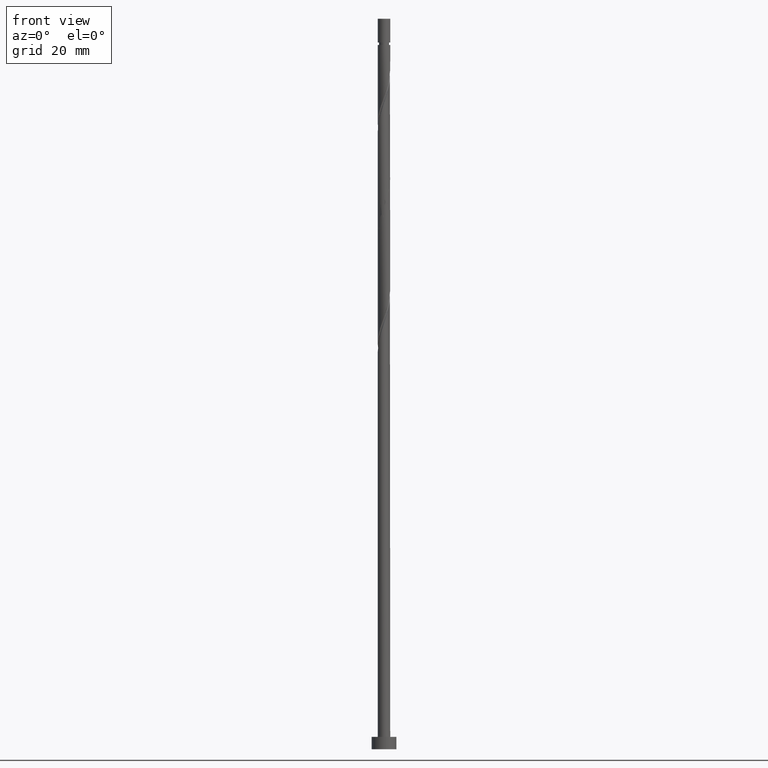
[diagram: clean part render]
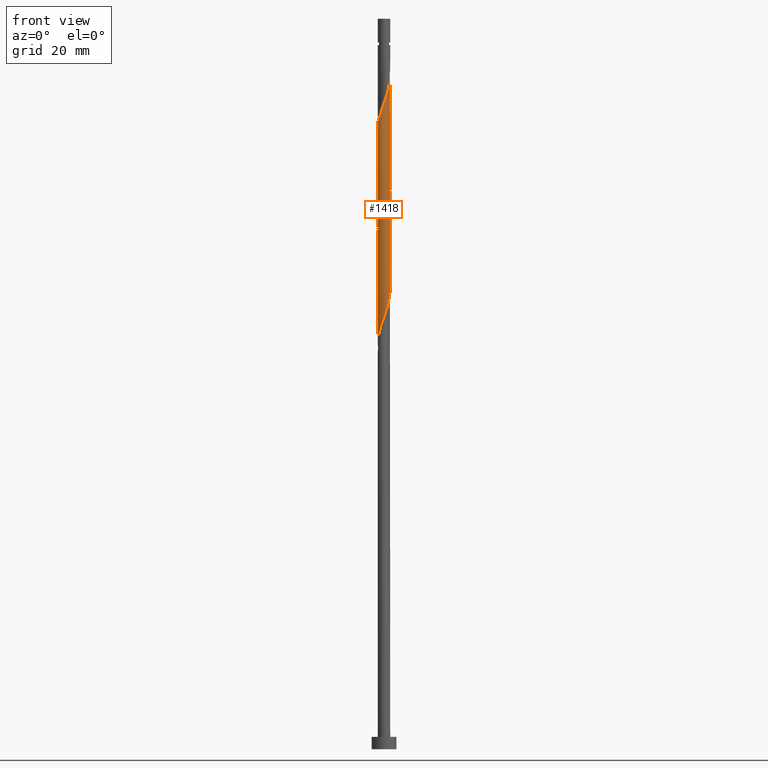
[diagram: same view with one face highlighted and labeled with its STEP entity id]
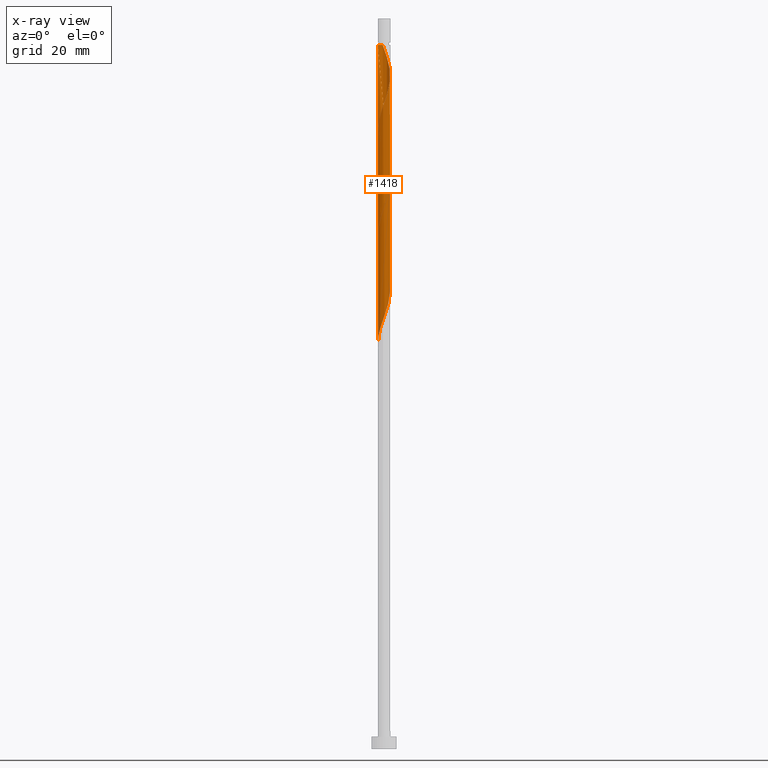
[diagram: x-ray of the same camera — body ghosted, the highlighted face saturated]
A machine part, front view. The second image highlights one B-rep face of the part: STEP entity #1418.
The next image is the same camera in x-ray: the body ghosted, the highlighted face saturated — about 0% of this face is hidden behind the body in this view.
In plain terms, the highlighted cylindrical surface (bore or boss wall) has radius 1.5 mm, axis along (-0, -0, -1).
Its self-contained STEP definition (entity closure, byte-faithful):
#3 = CARTESIAN_POINT ( 'NONE',  ( 1.461158848907850194, 0.3391383467823793074, 139.1065839903388905 ) ) ;
#7 = FACE_OUTER_BOUND ( 'NONE', #682, .T. ) ;
#15 = CARTESIAN_POINT ( 'NONE',  ( 1.412398115979204949, 0.5492212733340086084, 113.0459779297328708 ) ) ;
#22 = CARTESIAN_POINT ( 'NONE',  ( 1.339997810401561518, -0.7077558288161661659, 136.0762809600358594 ) ) ;
#30 = CARTESIAN_POINT ( 'NONE',  ( -1.086320624467305818, 1.056607754070165939, 121.5308264145813695 ) ) ;
#32 = CARTESIAN_POINT ( 'NONE',  ( -1.213159217434435888, -0.8821817914431672181, 152.4399173236722902 ) ) ;
#37 = CARTESIAN_POINT ( 'NONE',  ( -1.497517962423704718, 0.08625515763335878106, 124.5611294448843722 ) ) ;
#43 = CARTESIAN_POINT ( 'NONE',  ( 1.485116343010913109, -0.3015657354974676796, 110.6217355054904345 ) ) ;
#46 = VECTOR ( 'NONE', #661, 1000.000000000000000 ) ;
#50 = CARTESIAN_POINT ( 'NONE',  ( -1.461158848907850194, -0.3391383467823798625, 99.10658399033891897 ) ) ;
#67 = CARTESIAN_POINT ( 'NONE',  ( 1.045853010636307090, -1.075263446855226013, 159.7126445963995707 ) ) ;
#82 = EDGE_CURVE ( 'NONE', #306, #1260, #578, .T. ) ;
#87 = VERTEX_POINT ( 'NONE', #550 ) ;
#94 = ORIENTED_EDGE ( 'NONE', *, *, #1450, .F. ) ;
#139 = CARTESIAN_POINT ( 'NONE',  ( -0.8912534666523064253, -1.225634408494018723, 102.1368870206419501 ) ) ;
#146 = CARTESIAN_POINT ( 'NONE',  ( 1.497517962423704718, -0.08625515763335897534, 137.8944627782176724 ) ) ;
#149 = CARTESIAN_POINT ( 'NONE',  ( 1.485116343010915552, 0.3015657354974674020, 163.9550688388238200 ) ) ;
#150 = CARTESIAN_POINT ( 'NONE',  ( -1.485116343010915552, -0.3015657354974674575, 150.6217355054904772 ) ) ;
#158 = CARTESIAN_POINT ( 'NONE',  ( -0.3426257832300782513, 1.476184276359225889, 119.1065839903389048 ) ) ;
#164 = CARTESIAN_POINT ( 'NONE',  ( -0.8912534666523064253, -1.225634408494018723, 128.8035536873086357 ) ) ;
#171 = CARTESIAN_POINT ( 'NONE',  ( -1.339997810401563960, -0.7077558288161672762, 151.8338567176116953 ) ) ;
#181 = CARTESIAN_POINT ( 'NONE',  ( -0.2984962311320401573, 1.470000000000530882, 170.6217355054905056 ) ) ;
#200 = CARTESIAN_POINT ( 'NONE',  ( 1.412398115979206725, -0.5492212733340107178, 161.5308264145813837 ) ) ;
#235 = CARTESIAN_POINT ( 'NONE',  ( 0.08714213895937637788, 1.512917278876086069, 144.5611294448843864 ) ) ;
#246 = CARTESIAN_POINT ( 'NONE',  ( 1.500000000000000000, -0.04316328978573361758, 138.0157586467397550 ) ) ;
#253 = CARTESIAN_POINT ( 'NONE',  ( -0.7005518949784523830, -1.326358564808965967, 129.4096142933692306 ) ) ;
#256 = CARTESIAN_POINT ( 'NONE',  ( -1.497517962423704718, 0.08625515763335878106, 151.2277961115510720 ) ) ;
#261 = CARTESIAN_POINT ( 'NONE',  ( 0.5436309926831510708, -1.398021939668449010, 106.3793112630661994 ) ) ;
#268 = CARTESIAN_POINT ( 'NONE',  ( 1.412557076706236758, -0.5046607821568168672, 136.6823415660965111 ) ) ;
#270 = CARTESIAN_POINT ( 'NONE',  ( 0.7446362021362258332, 1.319859602977673685, 167.5914324751874176 ) ) ;
#271 = CIRCLE ( 'NONE', #1345, 1.499999999999991784 ) ;
#276 = CARTESIAN_POINT ( 'NONE',  ( 0.08714213895937637788, 1.512917278876086069, 117.8944627782177150 ) ) ;
#282 = CARTESIAN_POINT ( 'NONE',  ( -0.2984962311319873107, -1.469999999999999751, 103.9550688388237916 ) ) ;
#294 = ORIENTED_EDGE ( 'NONE', *, *, #376, .F. ) ;
#302 = DIRECTION ( 'NONE',  ( -1.000000000000000000, 0.000000000000000000, 0.000000000000000000 ) ) ;
#306 = VERTEX_POINT ( 'NONE', #645 ) ;
#308 = CARTESIAN_POINT ( 'NONE',  ( 0.8912534666523079796, -1.225634408494020722, 159.1065839903389190 ) ) ;
#337 = AXIS2_PLACEMENT_3D ( 'NONE', #831, #1431, #358 ) ;
#343 = CARTESIAN_POINT ( 'NONE',  ( 0.8912534666523064253, 1.225634408494018501, 142.1368870206419217 ) ) ;
#354 = ORIENTED_EDGE ( 'NONE', *, *, #1078, .F. ) ;
#358 = DIRECTION ( 'NONE',  ( -1.000000000000000000, 0.000000000000000000, 0.000000000000000000 ) ) ;
#366 = CARTESIAN_POINT ( 'NONE',  ( 0.9154784133017644931, -1.188233678523918702, 134.2580991418541032 ) ) ;
#369 = CARTESIAN_POINT ( 'NONE',  ( 0.7005518949784524940, 1.326358564808965967, 142.7429476267025734 ) ) ;
#375 = CARTESIAN_POINT ( 'NONE',  ( -1.200452554620304202, -0.9248924852164287502, 100.9247658085207320 ) ) ;
#376 = EDGE_CURVE ( 'NONE', #87, #1198, #1522, .T. ) ;
#378 = CARTESIAN_POINT ( 'NONE',  ( 0.08714213895937622523, -1.512917278876088734, 156.6823415660964827 ) ) ;
#384 = CARTESIAN_POINT ( 'NONE',  ( 1.086320624467306262, -1.056607754070165717, 108.1974930812480551 ) ) ;
#386 = CARTESIAN_POINT ( 'NONE',  ( 0.9154784133017664915, 1.188233678523920478, 166.9853718691268512 ) ) ;
#387 = CARTESIAN_POINT ( 'NONE',  ( -0.3426257832300790840, -1.476184276359228109, 155.4702203539753214 ) ) ;
#391 = CARTESIAN_POINT ( 'NONE',  ( 1.306425335299754353, 0.7370568792752194565, 113.6520385357934515 ) ) ;
#397 = CARTESIAN_POINT ( 'NONE',  ( -0.2984962311319873107, -1.469999999999999751, 130.6217355054904488 ) ) ;
#415 = CARTESIAN_POINT ( 'NONE',  ( -1.500000000000000222, 0.000000000000000000, 177.0000000000000000 ) ) ;
#430 = CARTESIAN_POINT ( 'NONE',  ( 0.000000000000000000, 0.000000000000000000, 170.6217355054904488 ) ) ;
#434 = ORIENTED_EDGE ( 'NONE', *, *, #750, .F. ) ;
#448 = VERTEX_POINT ( 'NONE', #1264 ) ;
#477 = CARTESIAN_POINT ( 'NONE',  ( -1.499999999999999778, 0.04316328978573650416, 151.3490919800730978 ) ) ;
#483 = CARTESIAN_POINT ( 'NONE',  ( 0.1277418221353504857, -1.494550777617656312, 105.1671900509449813 ) ) ;
#487 = CARTESIAN_POINT ( 'NONE',  ( -1.213159217434433446, 0.8821817914431657748, 148.8035536873086357 ) ) ;
#493 = CARTESIAN_POINT ( 'NONE',  ( -1.306425335299754797, -0.7370568792752192344, 126.9853718691268085 ) ) ;
#500 = CARTESIAN_POINT ( 'NONE',  ( -0.5436309926831510708, 1.398021939668449010, 119.7126445963995280 ) ) ;
#502 = CARTESIAN_POINT ( 'NONE',  ( 1.086320624467308260, 1.056607754070166605, 166.3793112630662563 ) ) ;
#503 = CARTESIAN_POINT ( 'NONE',  ( -1.086320624467307816, -1.056607754070167271, 153.0459779297329135 ) ) ;
#508 = CARTESIAN_POINT ( 'NONE',  ( -0.1277418221353509020, 1.494550777617656312, 118.5005233842783099 ) ) ;
#513 = CARTESIAN_POINT ( 'NONE',  ( 1.213159217434433668, -0.8821817914431657748, 108.8035536873086215 ) ) ;
#517 = CARTESIAN_POINT ( 'NONE',  ( -1.497517962423707383, -0.08625515763335846187, 150.0156748994299107 ) ) ;
#550 = CARTESIAN_POINT ( 'NONE',  ( 1.500000000000000222, 1.836970198721030181E-16, 170.6217355054904772 ) ) ;
#561 = DIRECTION ( 'NONE',  ( -0.000000000000000000, -0.000000000000000000, -1.000000000000000000 ) ) ;
#577 = CARTESIAN_POINT ( 'NONE',  ( -1.500000000000000000, 2.767011830146801923E-16, 151.4711899847913514 ) ) ;
#578 =( BOUNDED_CURVE ( )  B_SPLINE_CURVE ( 2, ( #619, #984, #517, #150, #1232, #171, #32, #503, #999, #977, #1461, #387, #1454, #378, #1488, #1253, #1135, #308, #67, #1379, #788, #200, #1033, #884, #1217, #149, #618, #1328, #609, #502, #386, #270, #1357, #1108, #1199, #601, #181 ),
 .UNSPECIFIED., .F., .T. ) 
 B_SPLINE_CURVE_WITH_KNOTS ( ( 3, 2, 2, 2, 2, 2, 2, 2, 2, 2, 2, 2, 2, 2, 2, 2, 2, 2, 3 ),
 ( 0.5545252162417512176, 0.5568181818181818787, 0.5681818181818181213, 0.5795454545454545858, 0.5909090909090909394, 0.6022727272727274039, 0.6136363636363637575, 0.6250000000000001110, 0.6363636363636365756, 0.6477272727272729291, 0.6590909090909093937, 0.6704545454545456362, 0.6818181818181821008, 0.6931818181818184543, 0.7045454545454549189, 0.7159090909090911614, 0.7272727272727277370, 0.7386363636363640905, 0.7500000000000004441 ),
 .UNSPECIFIED. ) 
 CURVE ( )  GEOMETRIC_REPRESENTATION_ITEM ( )  RATIONAL_B_SPLINE_CURVE ( ( 0.9061101570135784433, 0.9072237824201606626, 0.9090909090909382595, 0.8998376744372403868, 0.9090909090909382595, 0.8998376744372403868, 0.9090909090909382595, 0.8998376744372403868, 0.9090909090909382595, 0.8998376744372403868, 0.9090909090909382595, 0.8998376744372403868, 0.9090909090909382595, 0.8998376744372403868, 0.9090909090909382595, 0.8998376744372403868, 0.9090909090909382595, 0.8998376744372403868, 0.9090909090909382595, 0.8998376744372403868, 0.9090909090909382595, 0.8998376744372403868, 0.9090909090909382595, 0.8998376744372403868, 0.9090909090909382595, 0.8998376744372403868, 0.9090909090909382595, 0.8998376744372403868, 0.9090909090909382595, 0.8998376744372403868, 0.9090909090909382595, 0.8998376744372403868, 0.9090909090909382595, 0.8998376744372403868, 0.9090909090909382595, 0.8998376744372400537, 0.9090909090909385926 ) ) 
 REPRESENTATION_ITEM ( '' )  );
#586 = CARTESIAN_POINT ( 'NONE',  ( 0.2984962311319874773, 1.469999999999999751, 143.9550688388237631 ) ) ;
#595 = CARTESIAN_POINT ( 'NONE',  ( -1.485116343010913109, 0.3015657354974674575, 150.6217355054904488 ) ) ;
#598 = CARTESIAN_POINT ( 'NONE',  ( -1.485116343010913109, 0.3015657354974674575, 123.9550688388237916 ) ) ;
#601 = CARTESIAN_POINT ( 'NONE',  ( -0.08714213895938449639, 1.512917278876089400, 170.0156748994298255 ) ) ;
#602 = VERTEX_POINT ( 'NONE', #1193 ) ;
#603 = CARTESIAN_POINT ( 'NONE',  ( -0.3426257832300782513, 1.476184276359225889, 145.7732506570056046 ) ) ;
#607 = CARTESIAN_POINT ( 'NONE',  ( 1.086320624467306262, -1.056607754070165717, 134.8641597479146981 ) ) ;
#609 = CARTESIAN_POINT ( 'NONE',  ( 1.213159217434435888, 0.8821817914431669960, 165.7732506570056046 ) ) ;
#616 = CARTESIAN_POINT ( 'NONE',  ( -1.045853010636305980, -1.075263446855223570, 128.1974930812480409 ) ) ;
#618 = CARTESIAN_POINT ( 'NONE',  ( 1.412557076706239645, 0.5046607821568172003, 164.5611294448843580 ) ) ;
#619 = CARTESIAN_POINT ( 'NONE',  ( -1.500000000000002442, 1.720034380902052995E-16, 149.7722810261895461 ) ) ;
#625 = CARTESIAN_POINT ( 'NONE',  ( -0.5098503233045978966, -1.427082721123913434, 130.0156748994297971 ) ) ;
#632 = CARTESIAN_POINT ( 'NONE',  ( 0.7446362021362245009, -1.319859602977671686, 133.6520385357934799 ) ) ;
#640 = LINE ( 'NONE', #764, #1219 ) ;
#645 = CARTESIAN_POINT ( 'NONE',  ( -1.500000000000002442, 1.720034380902052995E-16, 149.7722810261895461 ) ) ;
#655 = LINE ( 'NONE', #415, #46 ) ;
#661 = DIRECTION ( 'NONE',  ( -0.000000000000000000, -0.000000000000000000, -1.000000000000000000 ) ) ;
#682 = EDGE_LOOP ( 'NONE', ( #354, #878, #1500, #1266, #94, #294, #858, #434 ) ) ;
#712 = CARTESIAN_POINT ( 'NONE',  ( 1.045853010636305092, 1.075263446855223792, 141.5308264145813268 ) ) ;
#727 = CARTESIAN_POINT ( 'NONE',  ( 1.509919581836496993, 0.1290554202307497289, 111.8338567176116669 ) ) ;
#732 = CARTESIAN_POINT ( 'NONE',  ( 1.412398115979204949, 0.5492212733340086084, 139.7126445963995423 ) ) ;
#738 = CARTESIAN_POINT ( 'NONE',  ( -1.412398115979204283, -0.5492212733340094966, 99.71264459639952804 ) ) ;
#745 = CARTESIAN_POINT ( 'NONE',  ( 0.3426257832300785289, -1.476184276359225889, 132.4399173236722618 ) ) ;
#750 = EDGE_CURVE ( 'NONE', #602, #1198, #1444, .T. ) ;
#752 = CARTESIAN_POINT ( 'NONE',  ( -1.412557076706236980, 0.5046607821568167562, 123.3490082327631967 ) ) ;
#758 = CARTESIAN_POINT ( 'NONE',  ( -1.412398115979204283, -0.5492212733340094966, 126.3793112630661852 ) ) ;
#764 = CARTESIAN_POINT ( 'NONE',  ( -1.500000000000000222, 0.000000000000000000, 177.0000000000000000 ) ) ;
#772 = CARTESIAN_POINT ( 'NONE',  ( -1.499999999999999778, -0.1717933910776846540, 98.62381660442927966 ) ) ;
#782 =( BOUNDED_CURVE ( )  B_SPLINE_CURVE ( 2, ( #1314, #246, #146, #1236, #268, #22, #1473, #607, #366, #632, #997, #745, #1230, #1084, #397, #625, #253, #164, #616, #1106, #493, #758, #1100, #1222, #37, #598, #752, #1215, #851, #30, #1459, #1452, #500, #158, #508, #276, #1113, #882, #990, #1466, #868, #1092, #391, #15, #875, #727, #981, #43, #1348, #1325, #513, #384, #967, #861, #261, #1355, #483, #1341, #282, #1440, #1207, #139, #975, #375, #1336, #738, #50, #772, #889 ),
 .UNSPECIFIED., .F., .T. ) 
 B_SPLINE_CURVE_WITH_KNOTS ( ( 3, 2, 2, 2, 2, 2, 2, 2, 2, 2, 2, 2, 2, 2, 2, 2, 2, 2, 2, 2, 2, 2, 2, 2, 2, 2, 2, 2, 2, 2, 2, 2, 2, 2, 3 ),
 ( 0.5545252162417512176, 0.5568181818181817677, 0.5681818181818182323, 0.5795454545454545858, 0.5909090909090909394, 0.6022727272727272929, 0.6136363636363636465, 0.6250000000000000000, 0.6363636363636363535, 0.6477272727272727071, 0.6590909090909090606, 0.6704545454545454142, 0.6818181818181817677, 0.6931818181818182323, 0.7045454545454545858, 0.7159090909090909394, 0.7272727272727272929, 0.7386363636363636465, 0.7500000000000000000, 0.7613636363636363535, 0.7727272727272727071, 0.7840909090909090606, 0.7954545454545454142, 0.8068181818181817677, 0.8181818181818182323, 0.8295454545454545858, 0.8409090909090909394, 0.8522727272727272929, 0.8636363636363636465, 0.8750000000000000000, 0.8863636363636363535, 0.8977272727272727071, 0.9090909090909090606, 0.9204545454545454142, 0.9295252162417512176 ),
 .UNSPECIFIED. ) 
 CURVE ( )  GEOMETRIC_REPRESENTATION_ITEM ( )  RATIONAL_B_SPLINE_CURVE ( ( 0.9061101570135718930, 0.9072237824201540013, 0.9090909090909315982, 0.8998376744372337255, 0.9090909090909315982, 0.8998376744372337255, 0.9090909090909315982, 0.8998376744372337255, 0.9090909090909315982, 0.8998376744372337255, 0.9090909090909315982, 0.8998376744372337255, 0.9090909090909315982, 0.8998376744372337255, 0.9090909090909315982, 0.8998376744372337255, 0.9090909090909315982, 0.8998376744372337255, 0.9090909090909315982, 0.8998376744372337255, 0.9090909090909315982, 0.8998376744372337255, 0.9090909090909315982, 0.8998376744372337255, 0.9090909090909315982, 0.8998376744372337255, 0.9090909090909315982, 0.8998376744372337255, 0.9090909090909315982, 0.8998376744372337255, 0.9090909090909315982, 0.8998376744372337255, 0.9090909090909315982, 0.8998376744372337255, 0.9090909090909315982, 0.8998376744372337255, 0.9090909090909315982, 0.8998376744372337255, 0.9090909090909315982, 0.8998376744372337255, 0.9090909090909315982, 0.8998376744372337255, 0.9090909090909315982, 0.8998376744372337255, 0.9090909090909315982, 0.8998376744372337255, 0.9090909090909315982, 0.8998376744372337255, 0.9090909090909315982, 0.8998376744372337255, 0.9090909090909315982, 0.8998376744372337255, 0.9090909090909315982, 0.8998376744372337255, 0.9090909090909315982, 0.8998376744372337255, 0.9090909090909315982, 0.8998376744372337255, 0.9090909090909315982, 0.8998376744372337255, 0.9090909090909315982, 0.8998376744372337255, 0.9090909090909315982, 0.8998376744372337255, 0.9090909090909315982, 0.8998376744372337255, 0.9090909090909315982, 0.9017048011080113223, 0.9061101570135718930 ) ) 
 REPRESENTATION_ITEM ( '' )  );
#788 = CARTESIAN_POINT ( 'NONE',  ( 1.306425335299756130, -0.7370568792752210108, 160.9247658085207604 ) ) ;
#809 = CARTESIAN_POINT ( 'NONE',  ( 1.500000000000000000, 1.503160480701370775E-15, 138.1378566514579802 ) ) ;
#820 = CARTESIAN_POINT ( 'NONE',  ( 1.499999999999999778, 0.1717933910776840989, 138.6238166044292939 ) ) ;
#827 = CARTESIAN_POINT ( 'NONE',  ( 1.200452554620303758, 0.9248924852164289723, 140.9247658085207320 ) ) ;
#831 = CARTESIAN_POINT ( 'NONE',  ( 0.000000000000000000, 0.000000000000000000, 177.0000000000000000 ) ) ;
#835 = CARTESIAN_POINT ( 'NONE',  ( -1.500000000000000000, -1.809775305123043420E-15, 98.13785665145800863 ) ) ;
#846 = VERTEX_POINT ( 'NONE', #835 ) ;
#851 = CARTESIAN_POINT ( 'NONE',  ( -1.213159217434433446, 0.8821817914431657748, 122.1368870206419501 ) ) ;
#856 = CARTESIAN_POINT ( 'NONE',  ( 1.306425335299754353, 0.7370568792752194565, 140.3187052024601371 ) ) ;
#858 = ORIENTED_EDGE ( 'NONE', *, *, #376, .T. ) ;
#861 = CARTESIAN_POINT ( 'NONE',  ( 0.7446362021362245009, -1.319859602977671686, 106.9853718691268369 ) ) ;
#868 = CARTESIAN_POINT ( 'NONE',  ( 1.045853010636305092, 1.075263446855223792, 114.8641597479146839 ) ) ;
#875 = CARTESIAN_POINT ( 'NONE',  ( 1.461158848907850194, 0.3391383467823793074, 112.4399173236722476 ) ) ;
#878 = ORIENTED_EDGE ( 'NONE', *, *, #1047, .T. ) ;
#882 = CARTESIAN_POINT ( 'NONE',  ( 0.5098503233045981187, 1.427082721123913434, 116.6823415660964969 ) ) ;
#884 = CARTESIAN_POINT ( 'NONE',  ( 1.509919581836499436, -0.1290554202307508114, 162.7429476267026018 ) ) ;
#889 = CARTESIAN_POINT ( 'NONE',  ( -1.500000000000000000, -1.809775305123043420E-15, 98.13785665145799442 ) ) ;
#939 = CARTESIAN_POINT ( 'NONE',  ( -0.5436309926831510708, 1.398021939668449010, 146.3793112630662279 ) ) ;
#942 = CARTESIAN_POINT ( 'NONE',  ( -0.2984962311320401573, 1.470000000000530882, 170.6217355054904772 ) ) ;
#967 = CARTESIAN_POINT ( 'NONE',  ( 0.9154784133017644931, -1.188233678523918702, 107.5914324751873892 ) ) ;
#975 = CARTESIAN_POINT ( 'NONE',  ( -1.045853010636305980, -1.075263446855223570, 101.5308264145813268 ) ) ;
#977 = CARTESIAN_POINT ( 'NONE',  ( -0.7446362021362261663, -1.319859602977673463, 154.2580991418541032 ) ) ;
#981 = CARTESIAN_POINT ( 'NONE',  ( 1.497517962423704718, -0.08625515763335897534, 111.2277961115510436 ) ) ;
#984 = CARTESIAN_POINT ( 'NONE',  ( -1.500000000000002887, -0.04316328978573132080, 149.8943790309077713 ) ) ;
#990 = CARTESIAN_POINT ( 'NONE',  ( 0.7005518949784524940, 1.326358564808965967, 116.0762809600359304 ) ) ;
#997 = CARTESIAN_POINT ( 'NONE',  ( 0.5436309926831510708, -1.398021939668449010, 133.0459779297328566 ) ) ;
#999 = CARTESIAN_POINT ( 'NONE',  ( -0.9154784133017667136, -1.188233678523920256, 153.6520385357935083 ) ) ;
#1033 = CARTESIAN_POINT ( 'NONE',  ( 1.461158848907853081, -0.3391383467823806952, 162.1368870206419786 ) ) ;
#1047 = EDGE_CURVE ( 'NONE', #448, #1260, #271, .T. ) ;
#1072 = CARTESIAN_POINT ( 'NONE',  ( -1.339997810401561518, 0.7077558288161661659, 149.4096142933692306 ) ) ;
#1078 = EDGE_CURVE ( 'NONE', #448, #602, #655, .T. ) ;
#1080 = CARTESIAN_POINT ( 'NONE',  ( 1.500000000000000000, 1.503160480701370775E-15, 138.1378566514579802 ) ) ;
#1084 = CARTESIAN_POINT ( 'NONE',  ( -0.08714213895937675258, -1.512917278876086069, 131.2277961115510152 ) ) ;
#1092 = CARTESIAN_POINT ( 'NONE',  ( 1.200452554620303758, 0.9248924852164289723, 114.2580991418540748 ) ) ;
#1100 = CARTESIAN_POINT ( 'NONE',  ( -1.461158848907850194, -0.3391383467823798625, 125.7732506570056188 ) ) ;
#1106 = CARTESIAN_POINT ( 'NONE',  ( -1.200452554620304202, -0.9248924852164287502, 127.5914324751874176 ) ) ;
#1108 = CARTESIAN_POINT ( 'NONE',  ( 0.3426257832300792505, 1.476184276359228109, 168.8035536873086073 ) ) ;
#1113 = CARTESIAN_POINT ( 'NONE',  ( 0.2984962311319874773, 1.469999999999999751, 117.2884021721570917 ) ) ;
#1135 = CARTESIAN_POINT ( 'NONE',  ( 0.7005518949784530491, -1.326358564808969298, 158.5005233842783525 ) ) ;
#1145 = DIRECTION ( 'NONE',  ( -0.000000000000000000, -0.000000000000000000, -1.000000000000000000 ) ) ;
#1170 = CARTESIAN_POINT ( 'NONE',  ( 1.500000000000000222, 1.836970198721030181E-16, 177.0000000000000000 ) ) ;
#1184 = CARTESIAN_POINT ( 'NONE',  ( -0.7446362021362245009, 1.319859602977671686, 146.9853718691267943 ) ) ;
#1193 = CARTESIAN_POINT ( 'NONE',  ( -1.500000000000000000, 2.767011830146801923E-16, 151.4711899847913514 ) ) ;
#1198 = VERTEX_POINT ( 'NONE', #809 ) ;
#1199 = CARTESIAN_POINT ( 'NONE',  ( 0.1277418221353515959, 1.494550777617658976, 169.4096142933692590 ) ) ;
#1207 = CARTESIAN_POINT ( 'NONE',  ( -0.7005518949784523830, -1.326358564808965967, 102.7429476267025876 ) ) ;
#1215 = CARTESIAN_POINT ( 'NONE',  ( -1.339997810401561518, 0.7077558288161661659, 122.7429476267025450 ) ) ;
#1217 = CARTESIAN_POINT ( 'NONE',  ( 1.497517962423707605, 0.08625515763335830921, 163.3490082327632820 ) ) ;
#1219 = VECTOR ( 'NONE', #1244, 1000.000000000000000 ) ;
#1222 = CARTESIAN_POINT ( 'NONE',  ( -1.509919581836496993, -0.1290554202307502840, 125.1671900509450097 ) ) ;
#1230 = CARTESIAN_POINT ( 'NONE',  ( 0.1277418221353504857, -1.494550777617656312, 131.8338567176116385 ) ) ;
#1232 = CARTESIAN_POINT ( 'NONE',  ( -1.412557076706239645, -0.5046607821568174224, 151.2277961115511005 ) ) ;
#1236 = CARTESIAN_POINT ( 'NONE',  ( 1.485116343010913109, -0.3015657354974676796, 137.2884021721571060 ) ) ;
#1244 = DIRECTION ( 'NONE',  ( -0.000000000000000000, -0.000000000000000000, -1.000000000000000000 ) ) ;
#1253 = CARTESIAN_POINT ( 'NONE',  ( 0.5098503233045983407, -1.427082721123916320, 157.8944627782177008 ) ) ;
#1258 = VECTOR ( 'NONE', #1145, 1000.000000000000000 ) ;
#1260 = VERTEX_POINT ( 'NONE', #942 ) ;
#1264 = CARTESIAN_POINT ( 'NONE',  ( -1.499999999999991784, 0.000000000000000000, 170.6217355054904488 ) ) ;
#1266 = ORIENTED_EDGE ( 'NONE', *, *, #1533, .T. ) ;
#1297 = CARTESIAN_POINT ( 'NONE',  ( -1.412557076706236980, 0.5046607821568167562, 150.0156748994298539 ) ) ;
#1314 = CARTESIAN_POINT ( 'NONE',  ( 1.500000000000000000, 1.503160480701370775E-15, 138.1378566514579802 ) ) ;
#1325 = CARTESIAN_POINT ( 'NONE',  ( 1.339997810401561518, -0.7077558288161661659, 109.4096142933692164 ) ) ;
#1328 = CARTESIAN_POINT ( 'NONE',  ( 1.339997810401564404, 0.7077558288161668321, 165.1671900509450097 ) ) ;
#1336 = CARTESIAN_POINT ( 'NONE',  ( -1.306425335299754797, -0.7370568792752192344, 100.3187052024601655 ) ) ;
#1341 = CARTESIAN_POINT ( 'NONE',  ( -0.08714213895937675258, -1.512917278876086069, 104.5611294448843864 ) ) ;
#1345 = AXIS2_PLACEMENT_3D ( 'NONE', #430, #561, #302 ) ;
#1348 = CARTESIAN_POINT ( 'NONE',  ( 1.412557076706236758, -0.5046607821568168672, 110.0156748994298255 ) ) ;
#1355 = CARTESIAN_POINT ( 'NONE',  ( 0.3426257832300785289, -1.476184276359225889, 105.7732506570056046 ) ) ;
#1357 = CARTESIAN_POINT ( 'NONE',  ( 0.5436309926831522921, 1.398021939668451230, 168.1974930812480409 ) ) ;
#1379 = CARTESIAN_POINT ( 'NONE',  ( 1.200452554620305978, -0.9248924852164307486, 160.3187052024601371 ) ) ;
#1418 = ADVANCED_FACE ( 'NONE', ( #7 ), #1518, .T. ) ;
#1420 = CARTESIAN_POINT ( 'NONE',  ( -0.9154784133017649372, 1.188233678523918480, 147.5914324751873892 ) ) ;
#1428 = CARTESIAN_POINT ( 'NONE',  ( 0.5098503233045981187, 1.427082721123913434, 143.3490082327631399 ) ) ;
#1431 = DIRECTION ( 'NONE',  ( -0.000000000000000000, -0.000000000000000000, -1.000000000000000000 ) ) ;
#1440 = CARTESIAN_POINT ( 'NONE',  ( -0.5098503233045978966, -1.427082721123913434, 103.3490082327631683 ) ) ;
#1444 =( BOUNDED_CURVE ( )  B_SPLINE_CURVE ( 2, ( #577, #477, #256, #595, #1297, #1072, #487, #1537, #1420, #1184, #939, #603, #1445, #235, #586, #1428, #369, #343, #712, #827, #856, #732, #3, #820, #1080 ),
 .UNSPECIFIED., .F., .T. ) 
 B_SPLINE_CURVE_WITH_KNOTS ( ( 3, 2, 2, 2, 2, 2, 2, 2, 2, 2, 2, 2, 3 ),
 ( 0.4295252162417514397, 0.4318181818181818232, 0.4431818181818181768, 0.4545454545454545303, 0.4659090909090908839, 0.4772727272727272929, 0.4886363636363636465, 0.5000000000000000000, 0.5113636363636363535, 0.5227272727272727071, 0.5340909090909090606, 0.5454545454545454142, 0.5545252162417512176 ),
 .UNSPECIFIED. ) 
 CURVE ( )  GEOMETRIC_REPRESENTATION_ITEM ( )  RATIONAL_B_SPLINE_CURVE ( ( 0.9061101570135718930, 0.9072237824201541123, 0.9090909090909315982, 0.8998376744372337255, 0.9090909090909315982, 0.8998376744372337255, 0.9090909090909315982, 0.8998376744372337255, 0.9090909090909315982, 0.8998376744372337255, 0.9090909090909315982, 0.8998376744372337255, 0.9090909090909315982, 0.8998376744372337255, 0.9090909090909315982, 0.8998376744372337255, 0.9090909090909315982, 0.8998376744372337255, 0.9090909090909315982, 0.8998376744372337255, 0.9090909090909315982, 0.8998376744372337255, 0.9090909090909315982, 0.9017048011080113223, 0.9061101570135718930 ) ) 
 REPRESENTATION_ITEM ( '' )  );
#1445 = CARTESIAN_POINT ( 'NONE',  ( -0.1277418221353509020, 1.494550777617656312, 145.1671900509450381 ) ) ;
#1450 = EDGE_CURVE ( 'NONE', #1198, #846, #782, .T. ) ;
#1452 = CARTESIAN_POINT ( 'NONE',  ( -0.7446362021362245009, 1.319859602977671686, 120.3187052024601513 ) ) ;
#1454 = CARTESIAN_POINT ( 'NONE',  ( -0.1277418221353514016, -1.494550777617658976, 156.0762809600358878 ) ) ;
#1459 = CARTESIAN_POINT ( 'NONE',  ( -0.9154784133017649372, 1.188233678523918480, 120.9247658085207604 ) ) ;
#1461 = CARTESIAN_POINT ( 'NONE',  ( -0.5436309926831528472, -1.398021939668451230, 154.8641597479147549 ) ) ;
#1466 = CARTESIAN_POINT ( 'NONE',  ( 0.8912534666523064253, 1.225634408494018501, 115.4702203539752929 ) ) ;
#1473 = CARTESIAN_POINT ( 'NONE',  ( 1.213159217434433668, -0.8821817914431657748, 135.4702203539752929 ) ) ;
#1488 = CARTESIAN_POINT ( 'NONE',  ( 0.2984962311319872552, -1.470000000000002416, 157.2884021721571344 ) ) ;
#1500 = ORIENTED_EDGE ( 'NONE', *, *, #82, .F. ) ;
#1518 = CYLINDRICAL_SURFACE ( 'NONE', #337, 1.500000000000000222 ) ;
#1522 = LINE ( 'NONE', #1170, #1258 ) ;
#1533 = EDGE_CURVE ( 'NONE', #306, #846, #640, .T. ) ;
#1537 = CARTESIAN_POINT ( 'NONE',  ( -1.086320624467305818, 1.056607754070165939, 148.1974930812480125 ) ) ;